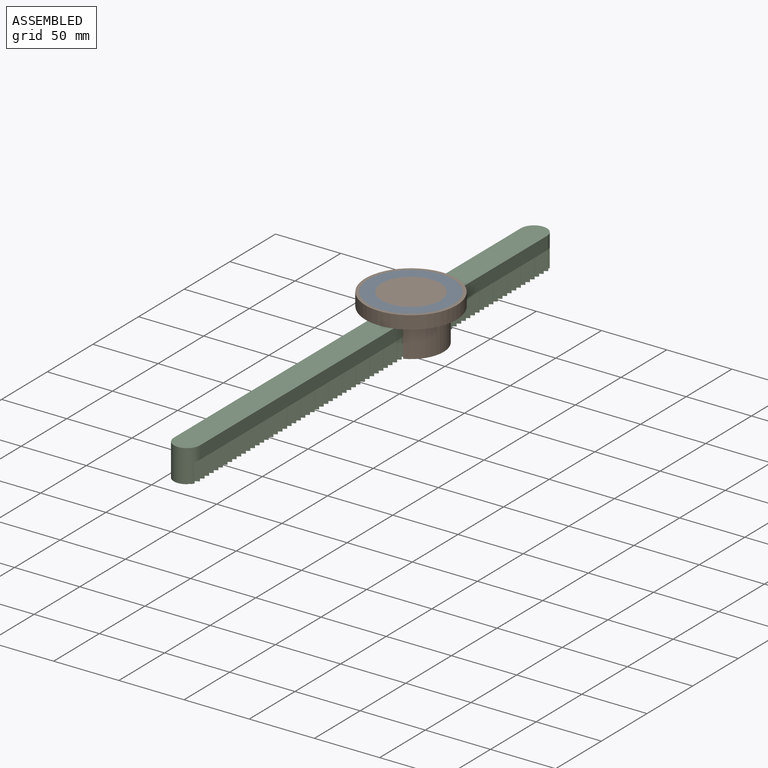
[diagram: assembled view]
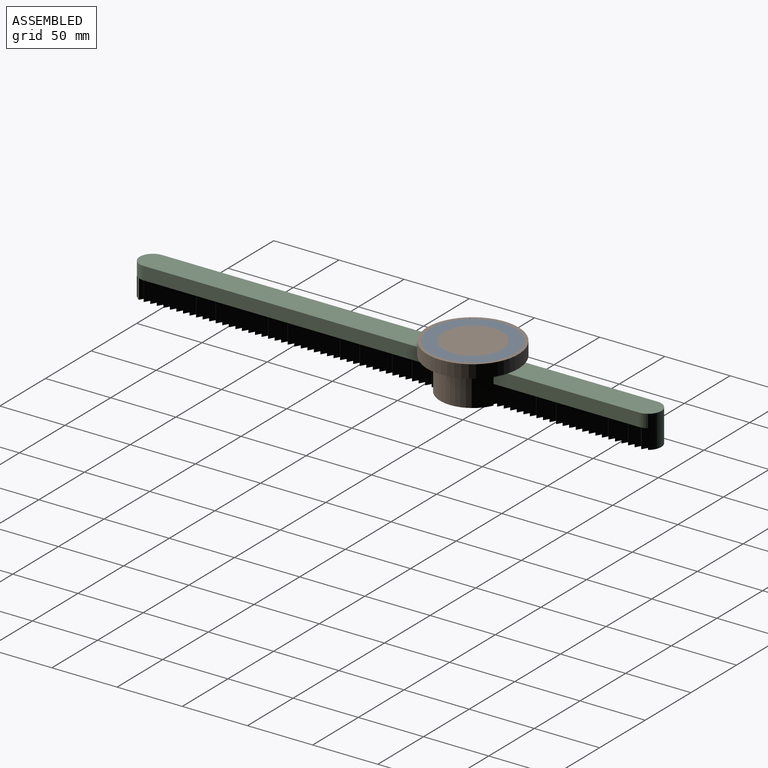
[diagram: assembled view, second angle]
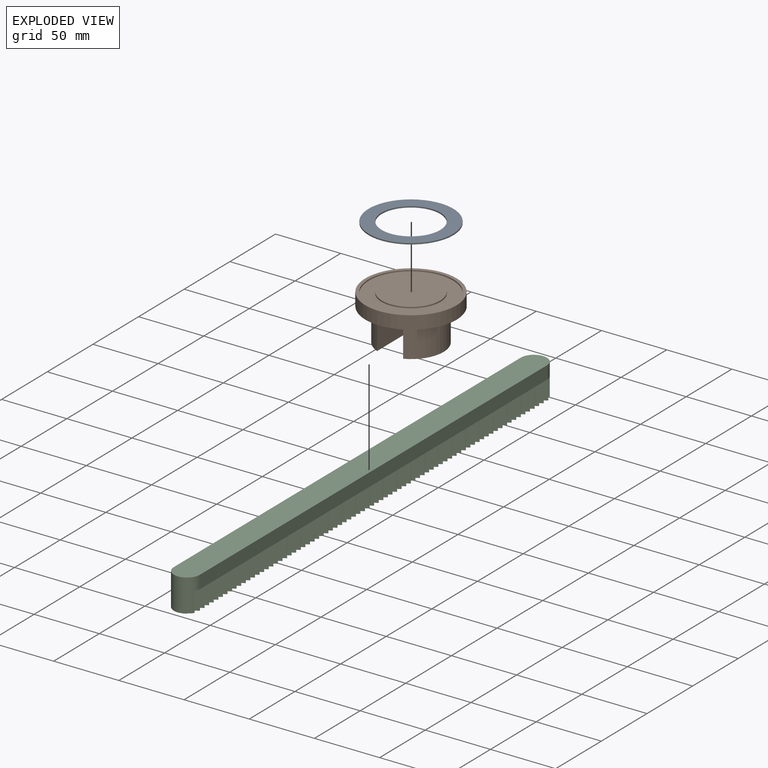
[diagram: exploded view]
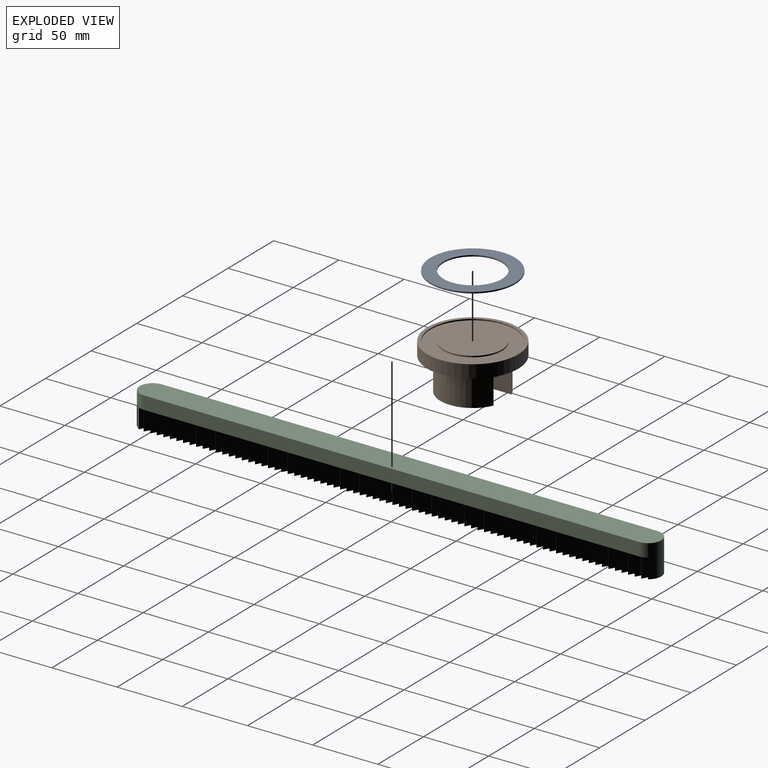
[diagram: exploded view, second angle]
ASSEMBLY  parts=3 mates=3
PART A: 4 faces, bbox 65x65x1 mm
  f0: cylinder r=22.5mm len=45mm, axis (0,0,-1), area 141.4mm2, adj f2,f3
  f1: cylinder r=32.5mm len=65mm, axis (0,0,-1), area 204.2mm2, adj f2,f3
  f2: plane 65x65mm, normal (0,0,1), area 1727.9mm2, adj f0,f1
  f3: plane 65x65mm, normal (0,0,-1), area 1727.9mm2, adj f0,f1
PART B: 13 faces, bbox 70x70x35 mm
  f0: cylinder r=25mm len=45.83mm, axis (0,0,1), area 1449.1mm2, adj f1,f4,f8
  f1: plane 45.83x15mm, normal (0,0,-1), area 495.4mm2, adj f0,f8
  f2: cylinder r=35mm len=70mm, axis (0,0,-1), area 2199.1mm2, adj f3,f4
  f3: plane 70x70mm, normal (0,0,1), area 530.1mm2, adj f2,f10
  f4: plane 70x70mm, normal (0,0,-1), area 2857.6mm2, adj f0,f2,f5,f7,f8
  f5: cylinder r=25mm len=45.83mm, axis (0,0,1), area 1449.1mm2, adj f4,f6,f7
  f6: plane 45.83x15mm, normal (0,0,-1), area 495.4mm2, adj f5,f7
  f7: plane 45.83x25mm, normal (1,0,0), area 1145.6mm2, adj f4,f5,f6
  f8: plane 45.83x25mm, normal (-1,0,0), area 1145.6mm2, adj f0,f1,f4
  f9: cylinder r=22.5mm len=45mm, axis (0,0,1), area 141.4mm2, adj f11,f12
  f10: cylinder r=32.5mm len=65mm, axis (0,0,1), area 204.2mm2, adj f3,f11
  f11: plane 65x65mm, normal (0,0,1), area 1727.9mm2, adj f9,f10
  f12: plane 45x45mm, normal (0,0,1), area 1590.4mm2, adj f9
PART C: 243 faces, bbox 20x400x25 mm
  f0: cylinder r=10mm len=25mm, axis (0,0,1), area 699.1mm2, adj f2,f3,f4,f5,f12,f14,f15,f16
  f1: cylinder r=10mm len=25mm, axis (0,0,1), area 684.3mm2, adj f2,f3,f4,f5,f6,f7,f8,f10
  f2: plane 380x25mm, normal (1,0,0), area 3822.8mm2, adj f0,f1,f4,f5,f9,f11,f13,f14
  f3: plane 380x25mm, normal (-1,0,0), area 9500mm2, adj f0,f1,f4,f5
  f4: plane 400x20mm, normal (0,0,1), area 7914.2mm2, adj f0,f1,f2,f3
  f5: plane 400x20mm, normal (0,0,-1), area 7074.6mm2, adj f0,f1,f2,f3,f6,f7,f9,f10
  f6: plane 15x2.11mm, normal (0.5,-0.87,0), area 36.6mm2, adj f1,f5,f7,f8
  f7: plane 15x0.56mm, normal (0.5,0.87,0), area 9.7mm2, adj f1,f5,f6,f8
  f8: plane 2.11x1.54mm, normal (0,0,-1), area 0.8mm2, adj f1,f6,f7
  f9: plane 15x4.33mm, normal (0.5,-0.87,0), area 75mm2, adj f2,f5,f10,f11
  f10: plane 15x3.31mm, normal (0.5,0.87,0), area 57.4mm2, adj f1,f5,f9,f11
  f11: plane 4.41x4.33mm, normal (0,0,-1), area 9.1mm2, adj f1,f2,f9,f10
  f12: plane 15x4.22mm, normal (0.5,-0.87,0), area 73.1mm2, adj f0,f5,f13,f14
  f13: plane 15x4.33mm, normal (0.5,0.87,0), area 75mm2, adj f2,f5,f12,f14
  f14: plane 4.94x4.33mm, normal (0,0,-1), area 10.8mm2, adj f0,f2,f12,f13
  f15: plane 15x2.63mm, normal (0.5,-0.87,0), area 45.5mm2, adj f0,f5,f16,f17
  f16: plane 15x4.2mm, normal (0.5,0.87,0), area 72.7mm2, adj f0,f5,f15,f17
  f17: plane 4.2x3.94mm, normal (0,0,-1), area 7mm2, adj f0,f15,f16
  f18: plane 15x4.33mm, normal (0.5,-0.87,0), area 75mm2, adj f2,f5,f19,f20
  f19: plane 15x4.33mm, normal (0.5,0.87,0), area 75mm2, adj f2,f5,f18,f20
  f20: plane 5x4.33mm, normal (0,0,-1), area 10.8mm2, adj f2,f18,f19
  f21: plane 15x4.33mm, normal (0.5,-0.87,0), area 75mm2, adj f2,f5,f22,f23
  f22: plane 15x4.33mm, normal (0.5,0.87,0), area 75mm2, adj f2,f5,f21,f23
  f23: plane 5x4.33mm, normal (0,0,-1), area 10.8mm2, adj f2,f21,f22
  f24: plane 15x4.33mm, normal (0.5,-0.87,0), area 75mm2, adj f2,f5,f25,f26
  f25: plane 15x4.33mm, normal (0.5,0.87,0), area 75mm2, adj f2,f5,f24,f26
  f26: plane 5x4.33mm, normal (0,0,-1), area 10.8mm2, adj f2,f24,f25
  f27: plane 15x4.33mm, normal (0.5,-0.87,0), area 75mm2, adj f2,f5,f28,f29
  f28: plane 15x4.33mm, normal (0.5,0.87,0), area 75mm2, adj f2,f5,f27,f29
  f29: plane 5x4.33mm, normal (0,0,-1), area 10.8mm2, adj f2,f27,f28
  f30: plane 15x4.33mm, normal (0.5,-0.87,0), area 75mm2, adj f2,f5,f31,f32
  f31: plane 15x4.33mm, normal (0.5,0.87,0), area 75mm2, adj f2,f5,f30,f32
  f32: plane 5x4.33mm, normal (0,0,-1), area 10.8mm2, adj f2,f30,f31
  f33: plane 15x4.33mm, normal (0.5,-0.87,0), area 75mm2, adj f2,f5,f34,f35
  f34: plane 15x4.33mm, normal (0.5,0.87,0), area 75mm2, adj f2,f5,f33,f35
  f35: plane 5x4.33mm, normal (0,0,-1), area 10.8mm2, adj f2,f33,f34
  f36: plane 15x4.33mm, normal (0.5,-0.87,0), area 75mm2, adj f2,f5,f37,f38
  f37: plane 15x4.33mm, normal (0.5,0.87,0), area 75mm2, adj f2,f5,f36,f38
  f38: plane 5x4.33mm, normal (0,0,-1), area 10.8mm2, adj f2,f36,f37
  f39: plane 15x4.33mm, normal (0.5,-0.87,0), area 75mm2, adj f2,f5,f40,f41
  f40: plane 15x4.33mm, normal (0.5,0.87,0), area 75mm2, adj f2,f5,f39,f41
  f41: plane 5x4.33mm, normal (0,0,-1), area 10.8mm2, adj f2,f39,f40
  f42: plane 15x4.33mm, normal (0.5,-0.87,0), area 75mm2, adj f2,f5,f43,f44
  f43: plane 15x4.33mm, normal (0.5,0.87,0), area 75mm2, adj f2,f5,f42,f44
  f44: plane 5x4.33mm, normal (0,0,-1), area 10.8mm2, adj f2,f42,f43
  f45: plane 15x4.33mm, normal (0.5,-0.87,0), area 75mm2, adj f2,f5,f46,f47
  f46: plane 15x4.33mm, normal (0.5,0.87,0), area 75mm2, adj f2,f5,f45,f47
  f47: plane 5x4.33mm, normal (0,0,-1), area 10.8mm2, adj f2,f45,f46
  f48: plane 15x4.33mm, normal (0.5,-0.87,0), area 75mm2, adj f2,f5,f49,f50
  f49: plane 15x4.33mm, normal (0.5,0.87,0), area 75mm2, adj f2,f5,f48,f50
  f50: plane 5x4.33mm, normal (0,0,-1), area 10.8mm2, adj f2,f48,f49
  f51: plane 15x4.33mm, normal (0.5,-0.87,0), area 75mm2, adj f2,f5,f52,f53
  f52: plane 15x4.33mm, normal (0.5,0.87,0), area 75mm2, adj f2,f5,f51,f53
  f53: plane 5x4.33mm, normal (0,0,-1), area 10.8mm2, adj f2,f51,f52
  f54: plane 15x4.33mm, normal (0.5,-0.87,0), area 75mm2, adj f2,f5,f55,f56
  f55: plane 15x4.33mm, normal (0.5,0.87,0), area 75mm2, adj f2,f5,f54,f56
  f56: plane 5x4.33mm, normal (0,0,-1), area 10.8mm2, adj f2,f54,f55
  f57: plane 15x4.33mm, normal (0.5,-0.87,0), area 75mm2, adj f2,f5,f58,f59
  f58: plane 15x4.33mm, normal (0.5,0.87,0), area 75mm2, adj f2,f5,f57,f59
  f59: plane 5x4.33mm, normal (0,0,-1), area 10.8mm2, adj f2,f57,f58
  f60: plane 15x4.33mm, normal (0.5,-0.87,0), area 75mm2, adj f2,f5,f61,f62
  f61: plane 15x4.33mm, normal (0.5,0.87,0), area 75mm2, adj f2,f5,f60,f62
  f62: plane 5x4.33mm, normal (0,0,-1), area 10.8mm2, adj f2,f60,f61
  f63: plane 15x4.33mm, normal (0.5,-0.87,0), area 75mm2, adj f2,f5,f64,f65
  f64: plane 15x4.33mm, normal (0.5,0.87,0), area 75mm2, adj f2,f5,f63,f65
  f65: plane 5x4.33mm, normal (0,0,-1), area 10.8mm2, adj f2,f63,f64
  f66: plane 15x4.33mm, normal (0.5,-0.87,0), area 75mm2, adj f2,f5,f67,f68
  f67: plane 15x4.33mm, normal (0.5,0.87,0), area 75mm2, adj f2,f5,f66,f68
  f68: plane 5x4.33mm, normal (0,0,-1), area 10.8mm2, adj f2,f66,f67
  f69: plane 15x4.33mm, normal (0.5,-0.87,0), area 75mm2, adj f2,f5,f70,f71
  f70: plane 15x4.33mm, normal (0.5,0.87,0), area 75mm2, adj f2,f5,f69,f71
  f71: plane 5x4.33mm, normal (0,0,-1), area 10.8mm2, adj f2,f69,f70
  f72: plane 15x4.33mm, normal (0.5,-0.87,0), area 75mm2, adj f2,f5,f73,f74
  f73: plane 15x4.33mm, normal (0.5,0.87,0), area 75mm2, adj f2,f5,f72,f74
  f74: plane 5x4.33mm, normal (0,0,-1), area 10.8mm2, adj f2,f72,f73
  f75: plane 15x4.33mm, normal (0.5,-0.87,0), area 75mm2, adj f2,f5,f76,f77
  f76: plane 15x4.33mm, normal (0.5,0.87,0), area 75mm2, adj f2,f5,f75,f77
  f77: plane 5x4.33mm, normal (0,0,-1), area 10.8mm2, adj f2,f75,f76
  f78: plane 15x4.33mm, normal (0.5,-0.87,0), area 75mm2, adj f2,f5,f79,f80
  f79: plane 15x4.33mm, normal (0.5,0.87,0), area 75mm2, adj f2,f5,f78,f80
  f80: plane 5x4.33mm, normal (0,0,-1), area 10.8mm2, adj f2,f78,f79
  f81: plane 15x4.33mm, normal (0.5,-0.87,0), area 75mm2, adj f2,f5,f82,f83
  f82: plane 15x4.33mm, normal (0.5,0.87,0), area 75mm2, adj f2,f5,f81,f83
  f83: plane 5x4.33mm, normal (0,0,-1), area 10.8mm2, adj f2,f81,f82
  f84: plane 15x4.33mm, normal (0.5,-0.87,0), area 75mm2, adj f2,f5,f85,f86
  f85: plane 15x4.33mm, normal (0.5,0.87,0), area 75mm2, adj f2,f5,f84,f86
  f86: plane 5x4.33mm, normal (0,0,-1), area 10.8mm2, adj f2,f84,f85
  f87: plane 15x4.33mm, normal (0.5,-0.87,0), area 75mm2, adj f2,f5,f88,f89
  f88: plane 15x4.33mm, normal (0.5,0.87,0), area 75mm2, adj f2,f5,f87,f89
  f89: plane 5x4.33mm, normal (0,0,-1), area 10.8mm2, adj f2,f87,f88
  f90: plane 15x4.33mm, normal (0.5,-0.87,0), area 75mm2, adj f2,f5,f91,f92
  f91: plane 15x4.33mm, normal (0.5,0.87,0), area 75mm2, adj f2,f5,f90,f92
  f92: plane 5x4.33mm, normal (0,0,-1), area 10.8mm2, adj f2,f90,f91
  f93: plane 15x4.33mm, normal (0.5,-0.87,0), area 75mm2, adj f2,f5,f94,f95
  f94: plane 15x4.33mm, normal (0.5,0.87,0), area 75mm2, adj f2,f5,f93,f95
  f95: plane 5x4.33mm, normal (0,0,-1), area 10.8mm2, adj f2,f93,f94
  f96: plane 15x4.33mm, normal (0.5,-0.87,0), area 75mm2, adj f2,f5,f97,f98
  f97: plane 15x4.33mm, normal (0.5,0.87,0), area 75mm2, adj f2,f5,f96,f98
  f98: plane 5x4.33mm, normal (0,0,-1), area 10.8mm2, adj f2,f96,f97
  f99: plane 15x4.33mm, normal (0.5,-0.87,0), area 75mm2, adj f2,f5,f100,f101
  f100: plane 15x4.33mm, normal (0.5,0.87,0), area 75mm2, adj f2,f5,f99,f101
  f101: plane 5x4.33mm, normal (0,0,-1), area 10.8mm2, adj f2,f99,f100
  f102: plane 15x4.33mm, normal (0.5,-0.87,0), area 75mm2, adj f2,f5,f103,f104
  f103: plane 15x4.33mm, normal (0.5,0.87,0), area 75mm2, adj f2,f5,f102,f104
  f104: plane 5x4.33mm, normal (0,0,-1), area 10.8mm2, adj f2,f102,f103
  f105: plane 15x4.33mm, normal (0.5,-0.87,0), area 75mm2, adj f2,f5,f106,f107
  f106: plane 15x4.33mm, normal (0.5,0.87,0), area 75mm2, adj f2,f5,f105,f107
  f107: plane 5x4.33mm, normal (0,0,-1), area 10.8mm2, adj f2,f105,f106
  f108: plane 15x4.33mm, normal (0.5,-0.87,0), area 75mm2, adj f2,f5,f109,f110
  f109: plane 15x4.33mm, normal (0.5,0.87,0), area 75mm2, adj f2,f5,f108,f110
  f110: plane 5x4.33mm, normal (0,0,-1), area 10.8mm2, adj f2,f108,f109
  f111: plane 15x4.33mm, normal (0.5,-0.87,0), area 75mm2, adj f2,f5,f112,f113
  f112: plane 15x4.33mm, normal (0.5,0.87,0), area 75mm2, adj f2,f5,f111,f113
  f113: plane 5x4.33mm, normal (0,0,-1), area 10.8mm2, adj f2,f111,f112
  f114: plane 15x4.33mm, normal (0.5,-0.87,0), area 75mm2, adj f2,f5,f115,f116
  f115: plane 15x4.33mm, normal (0.5,0.87,0), area 75mm2, adj f2,f5,f114,f116
  f116: plane 5x4.33mm, normal (0,0,-1), area 10.8mm2, adj f2,f114,f115
  f117: plane 15x4.33mm, normal (0.5,-0.87,0), area 75mm2, adj f2,f5,f118,f119
  f118: plane 15x4.33mm, normal (0.5,0.87,0), area 75mm2, adj f2,f5,f117,f119
  f119: plane 5x4.33mm, normal (0,0,-1), area 10.8mm2, adj f2,f117,f118
  f120: plane 15x4.33mm, normal (0.5,-0.87,0), area 75mm2, adj f2,f5,f121,f122
  f121: plane 15x4.33mm, normal (0.5,0.87,0), area 75mm2, adj f2,f5,f120,f122
  f122: plane 5x4.33mm, normal (0,0,-1), area 10.8mm2, adj f2,f120,f121
  f123: plane 15x4.33mm, normal (0.5,-0.87,0), area 75mm2, adj f2,f5,f124,f125
  f124: plane 15x4.33mm, normal (0.5,0.87,0), area 75mm2, adj f2,f5,f123,f125
  f125: plane 5x4.33mm, normal (0,0,-1), area 10.8mm2, adj f2,f123,f124
  f126: plane 15x4.33mm, normal (0.5,-0.87,0), area 75mm2, adj f2,f5,f127,f128
  f127: plane 15x4.33mm, normal (0.5,0.87,0), area 75mm2, adj f2,f5,f126,f128
  f128: plane 5x4.33mm, normal (0,0,-1), area 10.8mm2, adj f2,f126,f127
  f129: plane 15x4.33mm, normal (0.5,-0.87,0), area 75mm2, adj f2,f5,f130,f131
  f130: plane 15x4.33mm, normal (0.5,0.87,0), area 75mm2, adj f2,f5,f129,f131
  f131: plane 5x4.33mm, normal (0,0,-1), area 10.8mm2, adj f2,f129,f130
  f132: plane 15x4.33mm, normal (0.5,-0.87,0), area 75mm2, adj f2,f5,f133,f134
  f133: plane 15x4.33mm, normal (0.5,0.87,0), area 75mm2, adj f2,f5,f132,f134
  f134: plane 5x4.33mm, normal (0,0,-1), area 10.8mm2, adj f2,f132,f133
  f135: plane 15x4.33mm, normal (0.5,-0.87,0), area 75mm2, adj f2,f5,f136,f137
  f136: plane 15x4.33mm, normal (0.5,0.87,0), area 75mm2, adj f2,f5,f135,f137
  f137: plane 5x4.33mm, normal (0,0,-1), area 10.8mm2, adj f2,f135,f136
  f138: plane 15x4.33mm, normal (0.5,-0.87,0), area 75mm2, adj f2,f5,f139,f140
  f139: plane 15x4.33mm, normal (0.5,0.87,0), area 75mm2, adj f2,f5,f138,f140
  f140: plane 5x4.33mm, normal (0,0,-1), area 10.8mm2, adj f2,f138,f139
  f141: plane 15x4.33mm, normal (0.5,-0.87,0), area 75mm2, adj f2,f5,f142,f143
  f142: plane 15x4.33mm, normal (0.5,0.87,0), area 75mm2, adj f2,f5,f141,f143
  f143: plane 5x4.33mm, normal (0,0,-1), area 10.8mm2, adj f2,f141,f142
  f144: plane 15x4.33mm, normal (0.5,-0.87,0), area 75mm2, adj f2,f5,f145,f146
  f145: plane 15x4.33mm, normal (0.5,0.87,0), area 75mm2, adj f2,f5,f144,f146
  f146: plane 5x4.33mm, normal (0,0,-1), area 10.8mm2, adj f2,f144,f145
  f147: plane 15x4.33mm, normal (0.5,-0.87,0), area 75mm2, adj f2,f5,f148,f149
  f148: plane 15x4.33mm, normal (0.5,0.87,0), area 75mm2, adj f2,f5,f147,f149
  f149: plane 5x4.33mm, normal (0,0,-1), area 10.8mm2, adj f2,f147,f148
  f150: plane 15x4.33mm, normal (0.5,-0.87,0), area 75mm2, adj f2,f5,f151,f152
  f151: plane 15x4.33mm, normal (0.5,0.87,0), area 75mm2, adj f2,f5,f150,f152
  f152: plane 5x4.33mm, normal (0,0,-1), area 10.8mm2, adj f2,f150,f151
  f153: plane 15x4.33mm, normal (0.5,-0.87,0), area 75mm2, adj f2,f5,f154,f155
  f154: plane 15x4.33mm, normal (0.5,0.87,0), area 75mm2, adj f2,f5,f153,f155
  f155: plane 5x4.33mm, normal (0,0,-1), area 10.8mm2, adj f2,f153,f154
  f156: plane 15x4.33mm, normal (0.5,-0.87,0), area 75mm2, adj f2,f5,f157,f158
  f157: plane 15x4.33mm, normal (0.5,0.87,0), area 75mm2, adj f2,f5,f156,f158
  f158: plane 5x4.33mm, normal (0,0,-1), area 10.8mm2, adj f2,f156,f157
  f159: plane 15x4.33mm, normal (0.5,-0.87,0), area 75mm2, adj f2,f5,f160,f161
  f160: plane 15x4.33mm, normal (0.5,0.87,0), area 75mm2, adj f2,f5,f159,f161
  f161: plane 5x4.33mm, normal (0,0,-1), area 10.8mm2, adj f2,f159,f160
  f162: plane 15x4.33mm, normal (0.5,-0.87,0), area 75mm2, adj f2,f5,f163,f164
  f163: plane 15x4.33mm, normal (0.5,0.87,0), area 75mm2, adj f2,f5,f162,f164
  f164: plane 5x4.33mm, normal (0,0,-1), area 10.8mm2, adj f2,f162,f163
  f165: plane 15x4.33mm, normal (0.5,-0.87,0), area 75mm2, adj f2,f5,f166,f167
  f166: plane 15x4.33mm, normal (0.5,0.87,0), area 75mm2, adj f2,f5,f165,f167
  f167: plane 5x4.33mm, normal (0,0,-1), area 10.8mm2, adj f2,f165,f166
  f168: plane 15x4.33mm, normal (0.5,-0.87,0), area 75mm2, adj f2,f5,f169,f170
  f169: plane 15x4.33mm, normal (0.5,0.87,0), area 75mm2, adj f2,f5,f168,f170
  f170: plane 5x4.33mm, normal (0,0,-1), area 10.8mm2, adj f2,f168,f169
  f171: plane 15x4.33mm, normal (0.5,-0.87,0), area 75mm2, adj f2,f5,f172,f173
  f172: plane 15x4.33mm, normal (0.5,0.87,0), area 75mm2, adj f2,f5,f171,f173
  f173: plane 5x4.33mm, normal (0,0,-1), area 10.8mm2, adj f2,f171,f172
  f174: plane 15x4.33mm, normal (0.5,-0.87,0), area 75mm2, adj f2,f5,f175,f176
  f175: plane 15x4.33mm, normal (0.5,0.87,0), area 75mm2, adj f2,f5,f174,f176
  f176: plane 5x4.33mm, normal (0,0,-1), area 10.8mm2, adj f2,f174,f175
  f177: plane 15x4.33mm, normal (0.5,-0.87,0), area 75mm2, adj f2,f5,f178,f179
  f178: plane 15x4.33mm, normal (0.5,0.87,0), area 75mm2, adj f2,f5,f177,f179
  f179: plane 5x4.33mm, normal (0,0,-1), area 10.8mm2, adj f2,f177,f178
  f180: plane 15x4.33mm, normal (0.5,-0.87,0), area 75mm2, adj f2,f5,f181,f182
  f181: plane 15x4.33mm, normal (0.5,0.87,0), area 75mm2, adj f2,f5,f180,f182
  f182: plane 5x4.33mm, normal (0,0,-1), area 10.8mm2, adj f2,f180,f181
  f183: plane 15x4.33mm, normal (0.5,-0.87,0), area 75mm2, adj f2,f5,f184,f185
  f184: plane 15x4.33mm, normal (0.5,0.87,0), area 75mm2, adj f2,f5,f183,f185
  f185: plane 5x4.33mm, normal (0,0,-1), area 10.8mm2, adj f2,f183,f184
  f186: plane 15x4.33mm, normal (0.5,-0.87,0), area 75mm2, adj f2,f5,f187,f188
  f187: plane 15x4.33mm, normal (0.5,0.87,0), area 75mm2, adj f2,f5,f186,f188
  f188: plane 5x4.33mm, normal (0,0,-1), area 10.8mm2, adj f2,f186,f187
  f189: plane 15x4.33mm, normal (0.5,-0.87,0), area 75mm2, adj f2,f5,f190,f191
  f190: plane 15x4.33mm, normal (0.5,0.87,0), area 75mm2, adj f2,f5,f189,f191
  f191: plane 5x4.33mm, normal (0,0,-1), area 10.8mm2, adj f2,f189,f190
  f192: plane 15x4.33mm, normal (0.5,-0.87,0), area 75mm2, adj f2,f5,f193,f194
  f193: plane 15x4.33mm, normal (0.5,0.87,0), area 75mm2, adj f2,f5,f192,f194
  f194: plane 5x4.33mm, normal (0,0,-1), area 10.8mm2, adj f2,f192,f193
  f195: plane 15x4.33mm, normal (0.5,-0.87,0), area 75mm2, adj f2,f5,f196,f197
  f196: plane 15x4.33mm, normal (0.5,0.87,0), area 75mm2, adj f2,f5,f195,f197
  f197: plane 5x4.33mm, normal (0,0,-1), area 10.8mm2, adj f2,f195,f196
  f198: plane 15x4.33mm, normal (0.5,-0.87,0), area 75mm2, adj f2,f5,f199,f200
  f199: plane 15x4.33mm, normal (0.5,0.87,0), area 75mm2, adj f2,f5,f198,f200
  f200: plane 5x4.33mm, normal (0,0,-1), area 10.8mm2, adj f2,f198,f199
  f201: plane 15x4.33mm, normal (0.5,-0.87,0), area 75mm2, adj f2,f5,f202,f203
  f202: plane 15x4.33mm, normal (0.5,0.87,0), area 75mm2, adj f2,f5,f201,f203
  f203: plane 5x4.33mm, normal (0,0,-1), area 10.8mm2, adj f2,f201,f202
  f204: plane 15x4.33mm, normal (0.5,-0.87,0), area 75mm2, adj f2,f5,f205,f206
  f205: plane 15x4.33mm, normal (0.5,0.87,0), area 75mm2, adj f2,f5,f204,f206
  f206: plane 5x4.33mm, normal (0,0,-1), area 10.8mm2, adj f2,f204,f205
  f207: plane 15x4.33mm, normal (0.5,-0.87,0), area 75mm2, adj f2,f5,f208,f209
  f208: plane 15x4.33mm, normal (0.5,0.87,0), area 75mm2, adj f2,f5,f207,f209
  f209: plane 5x4.33mm, normal (0,0,-1), area 10.8mm2, adj f2,f207,f208
  f210: plane 15x4.33mm, normal (0.5,-0.87,0), area 75mm2, adj f2,f5,f211,f212
  f211: plane 15x4.33mm, normal (0.5,0.87,0), area 75mm2, adj f2,f5,f210,f212
  f212: plane 5x4.33mm, normal (0,0,-1), area 10.8mm2, adj f2,f210,f211
  f213: plane 15x4.33mm, normal (0.5,-0.87,0), area 75mm2, adj f2,f5,f214,f215
  f214: plane 15x4.33mm, normal (0.5,0.87,0), area 75mm2, adj f2,f5,f213,f215
  f215: plane 5x4.33mm, normal (0,0,-1), area 10.8mm2, adj f2,f213,f214
  f216: plane 15x4.33mm, normal (0.5,-0.87,0), area 75mm2, adj f2,f5,f217,f218
  f217: plane 15x4.33mm, normal (0.5,0.87,0), area 75mm2, adj f2,f5,f216,f218
  f218: plane 5x4.33mm, normal (0,0,-1), area 10.8mm2, adj f2,f216,f217
  f219: plane 15x4.33mm, normal (0.5,-0.87,0), area 75mm2, adj f2,f5,f220,f221
  f220: plane 15x4.33mm, normal (0.5,0.87,0), area 75mm2, adj f2,f5,f219,f221
  f221: plane 5x4.33mm, normal (0,0,-1), area 10.8mm2, adj f2,f219,f220
  f222: plane 15x4.33mm, normal (0.5,-0.87,0), area 75mm2, adj f2,f5,f223,f224
  f223: plane 15x4.33mm, normal (0.5,0.87,0), area 75mm2, adj f2,f5,f222,f224
  f224: plane 5x4.33mm, normal (0,0,-1), area 10.8mm2, adj f2,f222,f223
  f225: plane 15x4.33mm, normal (0.5,-0.87,0), area 75mm2, adj f2,f5,f226,f227
  f226: plane 15x4.33mm, normal (0.5,0.87,0), area 75mm2, adj f2,f5,f225,f227
  f227: plane 5x4.33mm, normal (0,0,-1), area 10.8mm2, adj f2,f225,f226
  f228: plane 15x4.33mm, normal (0.5,-0.87,0), area 75mm2, adj f2,f5,f229,f230
  f229: plane 15x4.33mm, normal (0.5,0.87,0), area 75mm2, adj f2,f5,f228,f230
  f230: plane 5x4.33mm, normal (0,0,-1), area 10.8mm2, adj f2,f228,f229
  f231: plane 15x4.33mm, normal (0.5,-0.87,0), area 75mm2, adj f2,f5,f232,f233
  f232: plane 15x4.33mm, normal (0.5,0.87,0), area 75mm2, adj f2,f5,f231,f233
  f233: plane 5x4.33mm, normal (0,0,-1), area 10.8mm2, adj f2,f231,f232
  f234: plane 15x4.33mm, normal (0.5,-0.87,0), area 75mm2, adj f2,f5,f235,f236
  f235: plane 15x4.33mm, normal (0.5,0.87,0), area 75mm2, adj f2,f5,f234,f236
  f236: plane 5x4.33mm, normal (0,0,-1), area 10.8mm2, adj f2,f234,f235
  f237: plane 15x4.33mm, normal (0.5,-0.87,0), area 75mm2, adj f2,f5,f238,f239
  f238: plane 15x4.33mm, normal (0.5,0.87,0), area 75mm2, adj f2,f5,f237,f239
  f239: plane 5x4.33mm, normal (0,0,-1), area 10.8mm2, adj f2,f237,f238
  f240: plane 15x4.33mm, normal (0.5,-0.87,0), area 75mm2, adj f2,f5,f241,f242
  f241: plane 15x4.33mm, normal (0.5,0.87,0), area 75mm2, adj f2,f5,f240,f242
  f242: plane 5x4.33mm, normal (0,0,-1), area 10.8mm2, adj f2,f240,f241
PLACE A t=(-70.1,48.72,37.69)mm
PLACE B t=(-70.1,48.72,28.69)mm
PLACE C t=(-70.1,-6.72,3.69)mm
MATE planar B.f7 <-> C.f3  axis (1,0,0) through (-80.1,48.72,16.19)mm
MATE planar B.f0 <-> C.f4  axis (0,0,-1) through (-70.1,48.72,28.69)mm
MATE fastened A.f0 <-> B.f0  axis (0,0,-1) through (-70.1,48.72,37.69)mm
